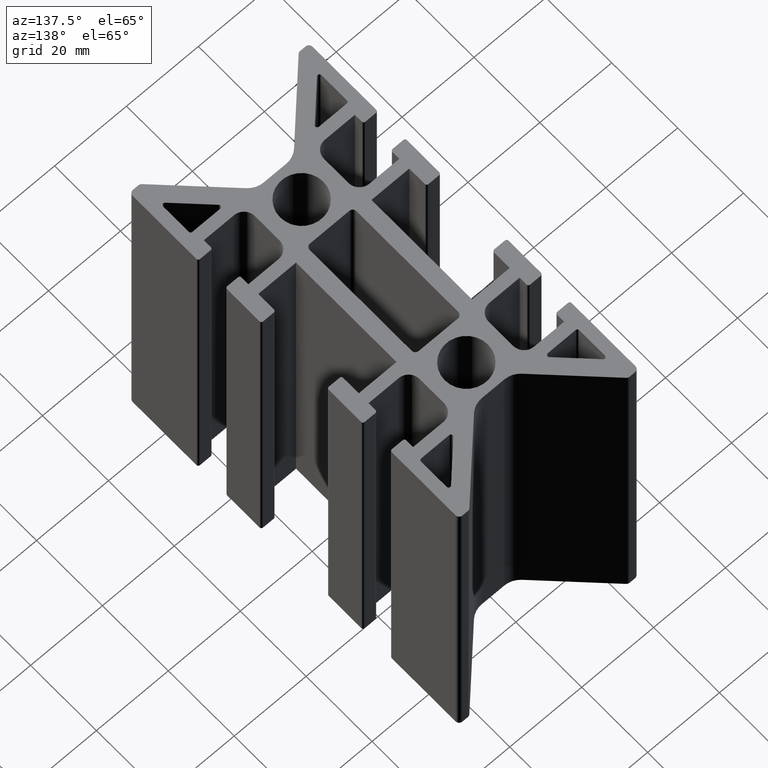
[diagram: clean part render]
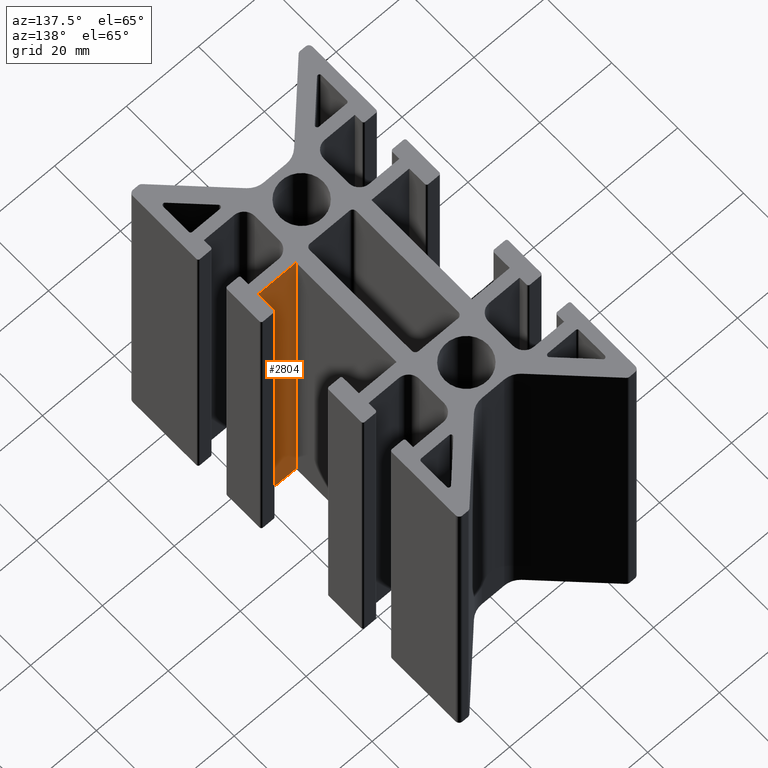
[diagram: same view with one face highlighted and labeled with its STEP entity id]
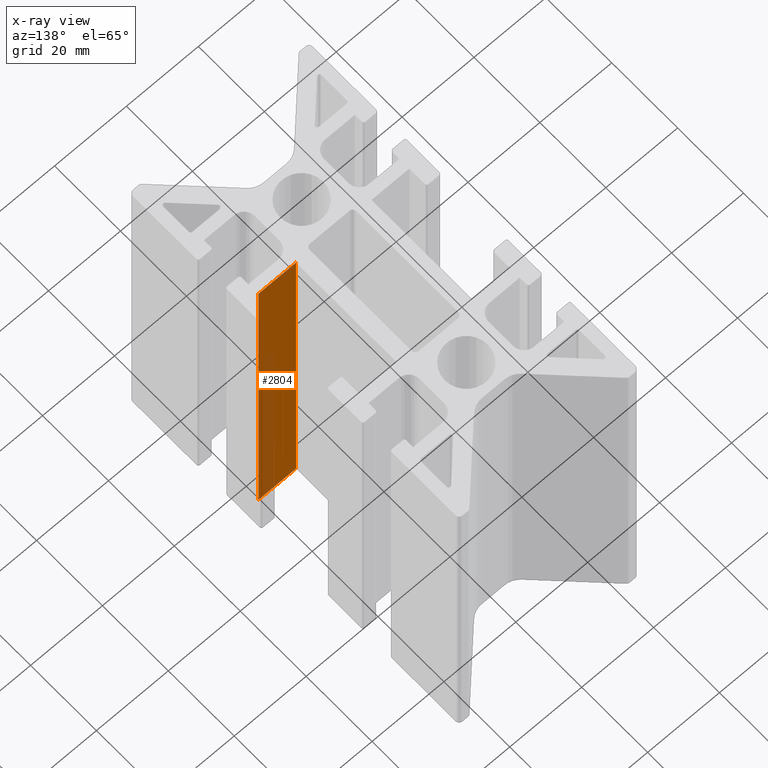
[diagram: x-ray of the same camera — body ghosted, the highlighted face saturated]
A machine part, auxiliary view. The second image highlights one B-rep face of the part: STEP entity #2804.
The next image is the same camera in x-ray: the body ghosted, the highlighted face saturated — about 26% of this face is hidden behind the body in this view.
In plain terms, the highlighted planar face has unit normal (-0, 1, 0).
Its self-contained STEP definition (entity closure, byte-faithful):
#94=PLANE('',#3083);
#226=FACE_OUTER_BOUND('',#373,.T.);
#373=EDGE_LOOP('',(#2405,#2406,#2407,#2408));
#640=LINE('',#4310,#930);
#783=LINE('',#4683,#1073);
#784=LINE('',#4686,#1074);
#785=LINE('',#4687,#1075);
#930=VECTOR('',#3443,10.);
#1073=VECTOR('',#3842,10.);
#1074=VECTOR('',#3845,10.);
#1075=VECTOR('',#3846,10.);
#1258=VERTEX_POINT('',#4307);
#1259=VERTEX_POINT('',#4309);
#1361=VERTEX_POINT('',#4681);
#1362=VERTEX_POINT('',#4685);
#1568=EDGE_CURVE('',#1258,#1259,#640,.T.);
#1755=EDGE_CURVE('',#1258,#1361,#783,.T.);
#1756=EDGE_CURVE('',#1362,#1361,#784,.T.);
#1757=EDGE_CURVE('',#1259,#1362,#785,.T.);
#2405=ORIENTED_EDGE('',*,*,#1755,.T.);
#2406=ORIENTED_EDGE('',*,*,#1756,.F.);
#2407=ORIENTED_EDGE('',*,*,#1757,.F.);
#2408=ORIENTED_EDGE('',*,*,#1568,.F.);
#2804=ADVANCED_FACE('',(#226),#94,.T.);
#3083=AXIS2_PLACEMENT_3D('',#4684,#3843,#3844);
#3443=DIRECTION('',(1.,4.22942104618268E-16,0.));
#3842=DIRECTION('',(0.,0.,1.));
#3843=DIRECTION('center_axis',(-4.22942104618268E-16,1.,0.));
#3844=DIRECTION('ref_axis',(-1.,-4.22942104618268E-16,0.));
#3845=DIRECTION('',(-1.,-4.22942104618268E-16,0.));
#3846=DIRECTION('',(0.,0.,1.));
#4307=CARTESIAN_POINT('',(10.4999999999788,-15.2500000000005,-50.));
#4309=CARTESIAN_POINT('',(20.9999999999997,-15.2500000000005,-50.));
#4310=CARTESIAN_POINT('',(20.9999999999997,-15.2500000000005,-50.));
#4681=CARTESIAN_POINT('',(10.4999999999788,-15.2500000000005,50.));
#4683=CARTESIAN_POINT('',(10.4999999999788,-15.2500000000005,0.));
#4684=CARTESIAN_POINT('Origin',(20.9999999999997,-15.2500000000005,0.));
#4685=CARTESIAN_POINT('',(20.9999999999997,-15.2500000000005,50.));
#4686=CARTESIAN_POINT('',(20.9999999999997,-15.2500000000005,50.));
#4687=CARTESIAN_POINT('',(20.9999999999997,-15.2500000000005,0.));